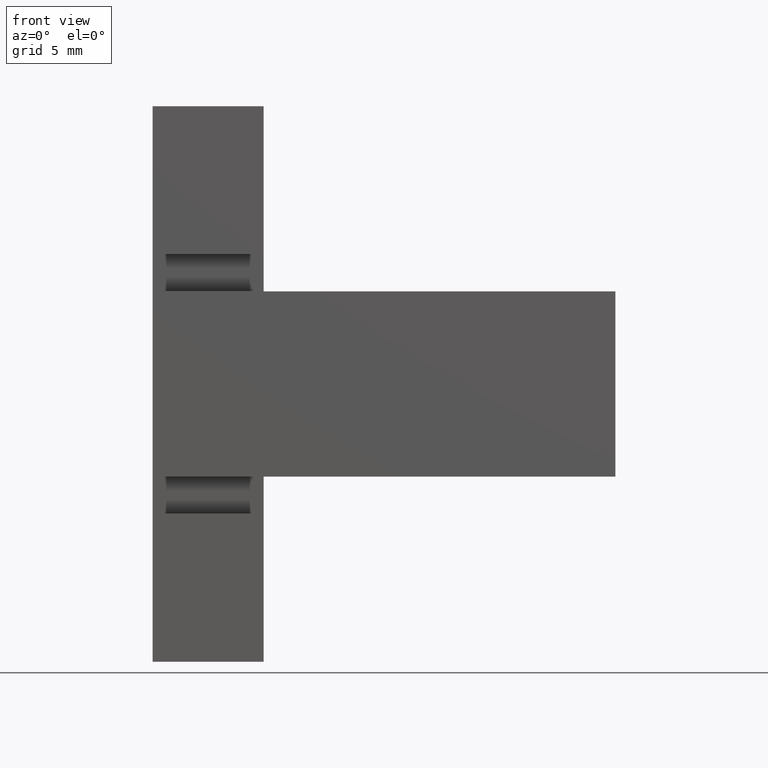
[diagram: clean part render]
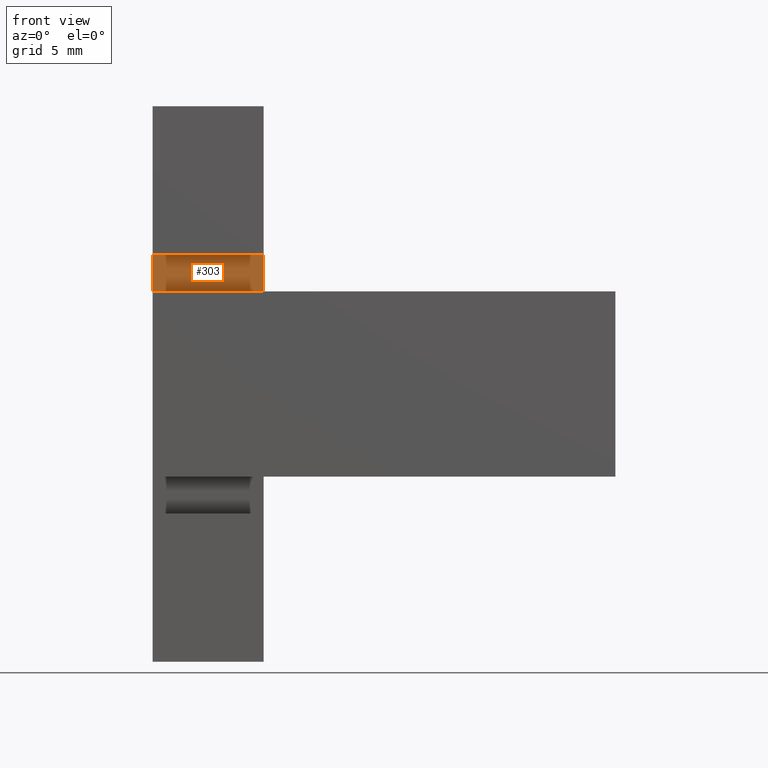
[diagram: same view with one face highlighted and labeled with its STEP entity id]
A machine part, front view. The second image highlights one B-rep face of the part: STEP entity #303.
In plain terms, the highlighted planar face has unit normal (0, 1, 0).
Its self-contained STEP definition (entity closure, byte-faithful):
#17=FACE_OUTER_BOUND('',#33,.T.);
#33=EDGE_LOOP('',(#209,#210,#211,#212));
#54=LINE('',#448,#96);
#55=LINE('',#450,#97);
#56=LINE('',#452,#98);
#57=LINE('',#453,#99);
#96=VECTOR('',#368,10.);
#97=VECTOR('',#369,10.);
#98=VECTOR('',#370,10.);
#99=VECTOR('',#371,10.);
#137=VERTEX_POINT('',#446);
#138=VERTEX_POINT('',#447);
#139=VERTEX_POINT('',#449);
#140=VERTEX_POINT('',#451);
#166=EDGE_CURVE('',#137,#138,#54,.T.);
#167=EDGE_CURVE('',#137,#139,#55,.T.);
#168=EDGE_CURVE('',#140,#139,#56,.T.);
#169=EDGE_CURVE('',#138,#140,#57,.T.);
#209=ORIENTED_EDGE('',*,*,#166,.F.);
#210=ORIENTED_EDGE('',*,*,#167,.T.);
#211=ORIENTED_EDGE('',*,*,#168,.F.);
#212=ORIENTED_EDGE('',*,*,#169,.F.);
#287=PLANE('',#339);
#303=ADVANCED_FACE('',(#17),#287,.F.);
#339=AXIS2_PLACEMENT_3D('',#445,#366,#367);
#366=DIRECTION('center_axis',(5.13581318503263E-32,1.,1.38777878078145E-16));
#367=DIRECTION('ref_axis',(-4.44089209850063E-16,1.38777878078145E-16,-1.));
#368=DIRECTION('',(-4.44089209850063E-16,1.38777878078145E-16,-1.));
#369=DIRECTION('',(-1.,0.,3.70074341541719E-16));
#370=DIRECTION('',(0.,-1.38777878078145E-16,1.));
#371=DIRECTION('',(-1.,0.,3.70074341541719E-16));
#445=CARTESIAN_POINT('Origin',(-6.5,2.,7.));
#446=CARTESIAN_POINT('',(-6.5,2.,7.));
#447=CARTESIAN_POINT('',(-6.5,2.,5.));
#448=CARTESIAN_POINT('',(-6.5,2.,11.));
#449=CARTESIAN_POINT('',(-12.5,2.,7.));
#450=CARTESIAN_POINT('',(-6.5,2.,7.));
#451=CARTESIAN_POINT('',(-12.5,2.,5.));
#452=CARTESIAN_POINT('',(-12.5,2.,-4.00000000000001));
#453=CARTESIAN_POINT('',(-6.5,2.,5.));